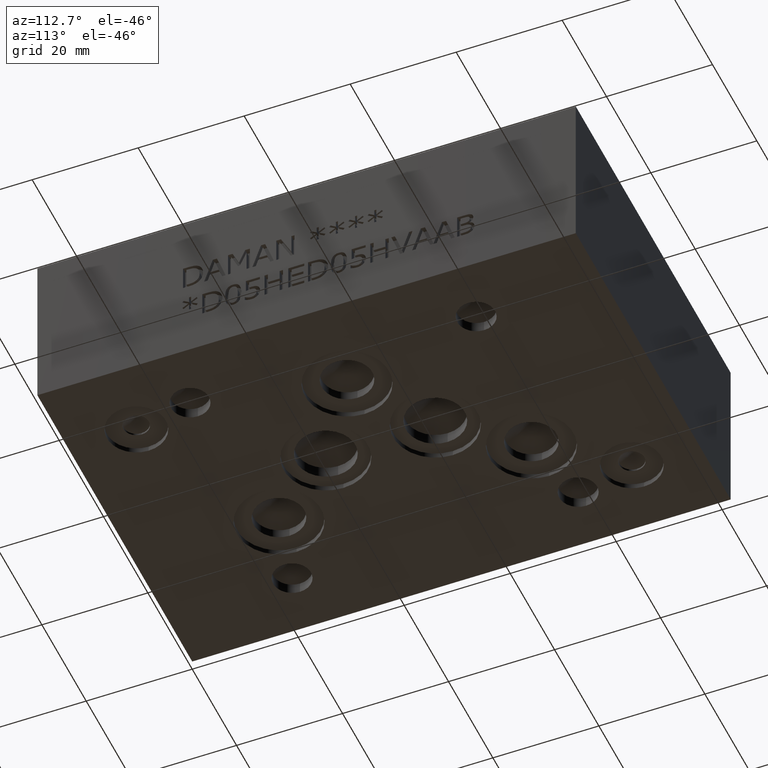
[diagram: clean part render]
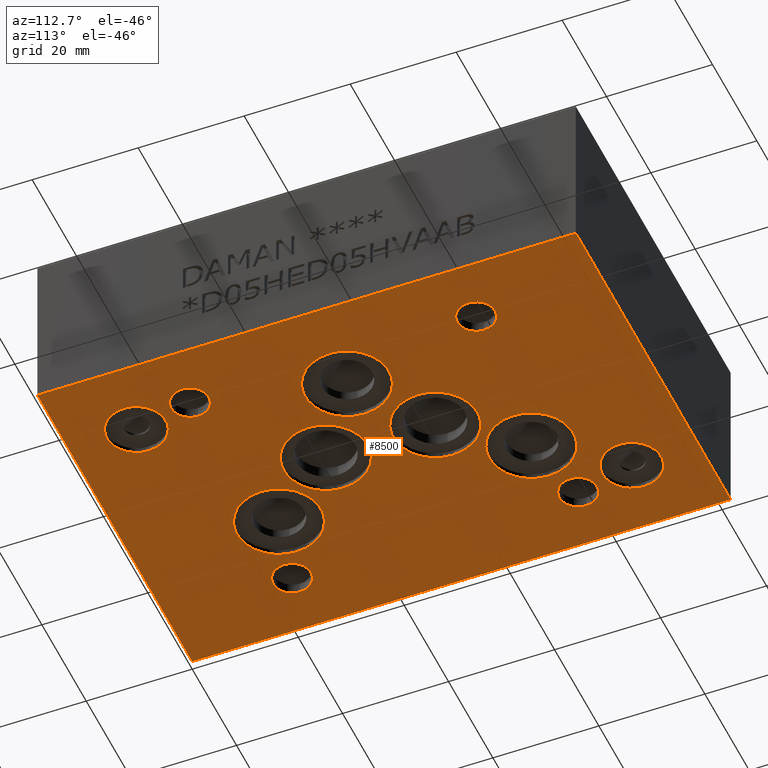
[diagram: same view with one face highlighted and labeled with its STEP entity id]
A machine part, auxiliary view. The second image highlights one B-rep face of the part: STEP entity #8500.
In plain terms, the highlighted planar face has unit normal (0, 0, 1).
Its self-contained STEP definition (entity closure, byte-faithful):
#49=CIRCLE('',#8800,5.5626);
#50=CIRCLE('',#8801,5.5626);
#53=CIRCLE('',#8806,5.5626);
#54=CIRCLE('',#8807,5.5626);
#72=CIRCLE('',#8837,7.9375);
#73=CIRCLE('',#8838,7.9375);
#76=CIRCLE('',#8843,7.9375);
#77=CIRCLE('',#8844,7.9375);
#80=CIRCLE('',#8849,7.9375);
#81=CIRCLE('',#8850,7.9375);
#84=CIRCLE('',#8855,7.9375);
#85=CIRCLE('',#8856,7.9375);
#88=CIRCLE('',#8861,7.9375);
#89=CIRCLE('',#8862,7.9375);
#94=CIRCLE('',#8870,3.5687);
#95=CIRCLE('',#8871,3.5687);
#98=CIRCLE('',#8876,3.5687);
#99=CIRCLE('',#8877,3.5687);
#102=CIRCLE('',#8882,3.5687);
#103=CIRCLE('',#8883,3.5687);
#106=CIRCLE('',#8888,3.5687);
#107=CIRCLE('',#8889,3.5687);
#225=FACE_BOUND('',#1403,.T.);
#226=FACE_BOUND('',#1404,.T.);
#227=FACE_BOUND('',#1405,.T.);
#228=FACE_BOUND('',#1406,.T.);
#229=FACE_BOUND('',#1407,.T.);
#230=FACE_BOUND('',#1408,.T.);
#231=FACE_BOUND('',#1409,.T.);
#232=FACE_BOUND('',#1410,.T.);
#233=FACE_BOUND('',#1411,.T.);
#234=FACE_BOUND('',#1412,.T.);
#235=FACE_BOUND('',#1413,.T.);
#925=FACE_OUTER_BOUND('',#1402,.T.);
#1402=EDGE_LOOP('',(#7410,#7411,#7412,#7413));
#1403=EDGE_LOOP('',(#7414,#7415));
#1404=EDGE_LOOP('',(#7416,#7417));
#1405=EDGE_LOOP('',(#7418,#7419));
#1406=EDGE_LOOP('',(#7420,#7421));
#1407=EDGE_LOOP('',(#7422,#7423));
#1408=EDGE_LOOP('',(#7424,#7425));
#1409=EDGE_LOOP('',(#7426,#7427));
#1410=EDGE_LOOP('',(#7428,#7429));
#1411=EDGE_LOOP('',(#7430,#7431));
#1412=EDGE_LOOP('',(#7432,#7433));
#1413=EDGE_LOOP('',(#7434,#7435));
#1848=LINE('',#12977,#2722);
#2280=LINE('',#14244,#3154);
#2284=LINE('',#14251,#3158);
#2286=LINE('',#14255,#3160);
#2722=VECTOR('',#9662,10.);
#3154=VECTOR('',#10714,10.);
#3158=VECTOR('',#10720,10.);
#3160=VECTOR('',#10726,10.);
#3558=VERTEX_POINT('',#12975);
#3559=VERTEX_POINT('',#12976);
#3832=VERTEX_POINT('',#13915);
#3833=VERTEX_POINT('',#13916);
#3836=VERTEX_POINT('',#13926);
#3837=VERTEX_POINT('',#13927);
#3860=VERTEX_POINT('',#13992);
#3861=VERTEX_POINT('',#13993);
#3864=VERTEX_POINT('',#14003);
#3865=VERTEX_POINT('',#14004);
#3868=VERTEX_POINT('',#14014);
#3869=VERTEX_POINT('',#14015);
#3872=VERTEX_POINT('',#14025);
#3873=VERTEX_POINT('',#14026);
#3876=VERTEX_POINT('',#14036);
#3877=VERTEX_POINT('',#14037);
#3883=VERTEX_POINT('',#14054);
#3884=VERTEX_POINT('',#14055);
#3888=VERTEX_POINT('',#14067);
#3889=VERTEX_POINT('',#14068);
#3893=VERTEX_POINT('',#14080);
#3894=VERTEX_POINT('',#14081);
#3898=VERTEX_POINT('',#14093);
#3899=VERTEX_POINT('',#14094);
#3955=VERTEX_POINT('',#14242);
#3956=VERTEX_POINT('',#14243);
#4553=EDGE_CURVE('',#3558,#3559,#1848,.T.);
#4960=EDGE_CURVE('',#3832,#3833,#49,.T.);
#4961=EDGE_CURVE('',#3833,#3832,#50,.T.);
#4965=EDGE_CURVE('',#3836,#3837,#53,.T.);
#4966=EDGE_CURVE('',#3837,#3836,#54,.T.);
#4995=EDGE_CURVE('',#3860,#3861,#72,.T.);
#4996=EDGE_CURVE('',#3861,#3860,#73,.T.);
#5000=EDGE_CURVE('',#3864,#3865,#76,.T.);
#5001=EDGE_CURVE('',#3865,#3864,#77,.T.);
#5005=EDGE_CURVE('',#3868,#3869,#80,.T.);
#5006=EDGE_CURVE('',#3869,#3868,#81,.T.);
#5010=EDGE_CURVE('',#3872,#3873,#84,.T.);
#5011=EDGE_CURVE('',#3873,#3872,#85,.T.);
#5015=EDGE_CURVE('',#3876,#3877,#88,.T.);
#5016=EDGE_CURVE('',#3877,#3876,#89,.T.);
#5023=EDGE_CURVE('',#3883,#3884,#94,.T.);
#5024=EDGE_CURVE('',#3884,#3883,#95,.T.);
#5029=EDGE_CURVE('',#3888,#3889,#98,.T.);
#5030=EDGE_CURVE('',#3889,#3888,#99,.T.);
#5035=EDGE_CURVE('',#3893,#3894,#102,.T.);
#5036=EDGE_CURVE('',#3894,#3893,#103,.T.);
#5041=EDGE_CURVE('',#3898,#3899,#106,.T.);
#5042=EDGE_CURVE('',#3899,#3898,#107,.T.);
#5110=EDGE_CURVE('',#3955,#3956,#2280,.T.);
#5114=EDGE_CURVE('',#3559,#3955,#2284,.T.);
#5116=EDGE_CURVE('',#3956,#3558,#2286,.T.);
#7410=ORIENTED_EDGE('',*,*,#5116,.F.);
#7411=ORIENTED_EDGE('',*,*,#5110,.F.);
#7412=ORIENTED_EDGE('',*,*,#5114,.F.);
#7413=ORIENTED_EDGE('',*,*,#4553,.F.);
#7414=ORIENTED_EDGE('',*,*,#4960,.T.);
#7415=ORIENTED_EDGE('',*,*,#4961,.T.);
#7416=ORIENTED_EDGE('',*,*,#4965,.T.);
#7417=ORIENTED_EDGE('',*,*,#4966,.T.);
#7418=ORIENTED_EDGE('',*,*,#4995,.T.);
#7419=ORIENTED_EDGE('',*,*,#4996,.T.);
#7420=ORIENTED_EDGE('',*,*,#5000,.T.);
#7421=ORIENTED_EDGE('',*,*,#5001,.T.);
#7422=ORIENTED_EDGE('',*,*,#5005,.T.);
#7423=ORIENTED_EDGE('',*,*,#5006,.T.);
#7424=ORIENTED_EDGE('',*,*,#5010,.T.);
#7425=ORIENTED_EDGE('',*,*,#5011,.T.);
#7426=ORIENTED_EDGE('',*,*,#5015,.T.);
#7427=ORIENTED_EDGE('',*,*,#5016,.T.);
#7428=ORIENTED_EDGE('',*,*,#5023,.T.);
#7429=ORIENTED_EDGE('',*,*,#5024,.T.);
#7430=ORIENTED_EDGE('',*,*,#5029,.T.);
#7431=ORIENTED_EDGE('',*,*,#5030,.T.);
#7432=ORIENTED_EDGE('',*,*,#5035,.T.);
#7433=ORIENTED_EDGE('',*,*,#5036,.T.);
#7434=ORIENTED_EDGE('',*,*,#5041,.T.);
#7435=ORIENTED_EDGE('',*,*,#5042,.T.);
#7722=PLANE('',#8961);
#8500=ADVANCED_FACE('',(#925,#225,#226,#227,#228,#229,#230,#231,#232,#233,
#234,#235),#7722,.F.);
#8800=AXIS2_PLACEMENT_3D('',#13917,#10353,#10354);
#8801=AXIS2_PLACEMENT_3D('',#13918,#10355,#10356);
#8806=AXIS2_PLACEMENT_3D('',#13928,#10366,#10367);
#8807=AXIS2_PLACEMENT_3D('',#13929,#10368,#10369);
#8837=AXIS2_PLACEMENT_3D('',#13994,#10439,#10440);
#8838=AXIS2_PLACEMENT_3D('',#13995,#10441,#10442);
#8843=AXIS2_PLACEMENT_3D('',#14005,#10452,#10453);
#8844=AXIS2_PLACEMENT_3D('',#14006,#10454,#10455);
#8849=AXIS2_PLACEMENT_3D('',#14016,#10465,#10466);
#8850=AXIS2_PLACEMENT_3D('',#14017,#10467,#10468);
#8855=AXIS2_PLACEMENT_3D('',#14027,#10478,#10479);
#8856=AXIS2_PLACEMENT_3D('',#14028,#10480,#10481);
#8861=AXIS2_PLACEMENT_3D('',#14038,#10491,#10492);
#8862=AXIS2_PLACEMENT_3D('',#14039,#10493,#10494);
#8870=AXIS2_PLACEMENT_3D('',#14056,#10511,#10512);
#8871=AXIS2_PLACEMENT_3D('',#14057,#10513,#10514);
#8876=AXIS2_PLACEMENT_3D('',#14069,#10525,#10526);
#8877=AXIS2_PLACEMENT_3D('',#14070,#10527,#10528);
#8882=AXIS2_PLACEMENT_3D('',#14082,#10539,#10540);
#8883=AXIS2_PLACEMENT_3D('',#14083,#10541,#10542);
#8888=AXIS2_PLACEMENT_3D('',#14095,#10553,#10554);
#8889=AXIS2_PLACEMENT_3D('',#14096,#10555,#10556);
#8961=AXIS2_PLACEMENT_3D('',#14258,#10730,#10731);
#9662=DIRECTION('',(0.,1.,0.));
#10353=DIRECTION('center_axis',(0.,0.,1.));
#10354=DIRECTION('ref_axis',(1.,0.,0.));
#10355=DIRECTION('center_axis',(0.,0.,1.));
#10356=DIRECTION('ref_axis',(1.,0.,0.));
#10366=DIRECTION('center_axis',(0.,0.,1.));
#10367=DIRECTION('ref_axis',(1.,0.,0.));
#10368=DIRECTION('center_axis',(0.,0.,1.));
#10369=DIRECTION('ref_axis',(1.,0.,0.));
#10439=DIRECTION('center_axis',(0.,0.,1.));
#10440=DIRECTION('ref_axis',(1.,0.,0.));
#10441=DIRECTION('center_axis',(0.,0.,1.));
#10442=DIRECTION('ref_axis',(1.,0.,0.));
#10452=DIRECTION('center_axis',(0.,0.,1.));
#10453=DIRECTION('ref_axis',(1.,0.,0.));
#10454=DIRECTION('center_axis',(0.,0.,1.));
#10455=DIRECTION('ref_axis',(1.,0.,0.));
#10465=DIRECTION('center_axis',(0.,0.,1.));
#10466=DIRECTION('ref_axis',(1.,0.,0.));
#10467=DIRECTION('center_axis',(0.,0.,1.));
#10468=DIRECTION('ref_axis',(1.,0.,0.));
#10478=DIRECTION('center_axis',(0.,0.,1.));
#10479=DIRECTION('ref_axis',(1.,0.,0.));
#10480=DIRECTION('center_axis',(0.,0.,1.));
#10481=DIRECTION('ref_axis',(1.,0.,0.));
#10491=DIRECTION('center_axis',(0.,0.,1.));
#10492=DIRECTION('ref_axis',(1.,0.,0.));
#10493=DIRECTION('center_axis',(0.,0.,1.));
#10494=DIRECTION('ref_axis',(1.,0.,0.));
#10511=DIRECTION('center_axis',(0.,0.,1.));
#10512=DIRECTION('ref_axis',(1.,0.,0.));
#10513=DIRECTION('center_axis',(0.,0.,1.));
#10514=DIRECTION('ref_axis',(1.,0.,0.));
#10525=DIRECTION('center_axis',(0.,0.,1.));
#10526=DIRECTION('ref_axis',(1.,0.,0.));
#10527=DIRECTION('center_axis',(0.,0.,1.));
#10528=DIRECTION('ref_axis',(1.,0.,0.));
#10539=DIRECTION('center_axis',(0.,0.,1.));
#10540=DIRECTION('ref_axis',(1.,0.,0.));
#10541=DIRECTION('center_axis',(0.,0.,1.));
#10542=DIRECTION('ref_axis',(1.,0.,0.));
#10553=DIRECTION('center_axis',(0.,0.,1.));
#10554=DIRECTION('ref_axis',(1.,0.,0.));
#10555=DIRECTION('center_axis',(0.,0.,1.));
#10556=DIRECTION('ref_axis',(1.,0.,0.));
#10714=DIRECTION('',(0.,-1.,0.));
#10720=DIRECTION('',(-1.,0.,0.));
#10726=DIRECTION('',(1.,0.,0.));
#10730=DIRECTION('center_axis',(0.,0.,1.));
#10731=DIRECTION('ref_axis',(1.,0.,0.));
#12975=CARTESIAN_POINT('',(69.85,0.,0.));
#12976=CARTESIAN_POINT('',(69.85,101.6,0.));
#12977=CARTESIAN_POINT('',(69.85,0.,0.));
#13915=CARTESIAN_POINT('',(61.1124,12.7,0.));
#13916=CARTESIAN_POINT('',(49.9872,12.7,0.));
#13917=CARTESIAN_POINT('Origin',(55.5498,12.7,0.));
#13918=CARTESIAN_POINT('Origin',(55.5498,12.7,0.));
#13926=CARTESIAN_POINT('',(19.8374,88.9254,0.));
#13927=CARTESIAN_POINT('',(8.7122,88.9254,0.));
#13928=CARTESIAN_POINT('Origin',(14.2748,88.9254,0.));
#13929=CARTESIAN_POINT('Origin',(14.2748,88.9254,0.));
#13992=CARTESIAN_POINT('',(44.4627,40.4876,0.));
#13993=CARTESIAN_POINT('',(28.5877,40.4876,0.));
#13994=CARTESIAN_POINT('Origin',(36.5252,40.4876,0.));
#13995=CARTESIAN_POINT('Origin',(36.5252,40.4876,0.));
#14003=CARTESIAN_POINT('',(33.3375,74.6252,0.));
#14004=CARTESIAN_POINT('',(17.4625,74.6252,0.));
#14005=CARTESIAN_POINT('Origin',(25.4,74.6252,0.));
#14006=CARTESIAN_POINT('Origin',(25.4,74.6252,0.));
#14014=CARTESIAN_POINT('',(59.5503,50.8,0.));
#14015=CARTESIAN_POINT('',(43.6753,50.8,0.));
#14016=CARTESIAN_POINT('Origin',(51.6128,50.8,0.));
#14017=CARTESIAN_POINT('Origin',(51.6128,50.8,0.));
#14025=CARTESIAN_POINT('',(44.4373,61.1378,0.));
#14026=CARTESIAN_POINT('',(28.5623,61.1378,0.));
#14027=CARTESIAN_POINT('Origin',(36.4998,61.1378,0.));
#14028=CARTESIAN_POINT('Origin',(36.4998,61.1378,0.));
#14036=CARTESIAN_POINT('',(33.3375,27.0002,0.));
#14037=CARTESIAN_POINT('',(17.4625,27.0002,0.));
#14038=CARTESIAN_POINT('Origin',(25.4,27.0002,0.));
#14039=CARTESIAN_POINT('Origin',(25.4,27.0002,0.));
#14054=CARTESIAN_POINT('',(61.5061,23.8252,0.));
#14055=CARTESIAN_POINT('',(54.3687,23.8252,0.));
#14056=CARTESIAN_POINT('Origin',(57.9374,23.8252,0.));
#14057=CARTESIAN_POINT('Origin',(57.9374,23.8252,0.));
#14067=CARTESIAN_POINT('',(15.4559,77.8002,0.));
#14068=CARTESIAN_POINT('',(8.3185,77.8002,0.));
#14069=CARTESIAN_POINT('Origin',(11.8872,77.8002,0.));
#14070=CARTESIAN_POINT('Origin',(11.8872,77.8002,0.));
#14080=CARTESIAN_POINT('',(61.5061,77.8129,0.));
#14081=CARTESIAN_POINT('',(54.3687,77.8129,0.));
#14082=CARTESIAN_POINT('Origin',(57.9374,77.8129,0.));
#14083=CARTESIAN_POINT('Origin',(57.9374,77.8129,0.));
#14093=CARTESIAN_POINT('',(15.4686,23.8252,0.));
#14094=CARTESIAN_POINT('',(8.3312,23.8252,0.));
#14095=CARTESIAN_POINT('Origin',(11.8999,23.8252,0.));
#14096=CARTESIAN_POINT('Origin',(11.8999,23.8252,0.));
#14242=CARTESIAN_POINT('',(0.,101.6,0.));
#14243=CARTESIAN_POINT('',(0.,0.,0.));
#14244=CARTESIAN_POINT('',(0.,101.6,0.));
#14251=CARTESIAN_POINT('',(69.85,101.6,0.));
#14255=CARTESIAN_POINT('',(0.,0.,0.));
#14258=CARTESIAN_POINT('Origin',(34.925,50.8,0.));